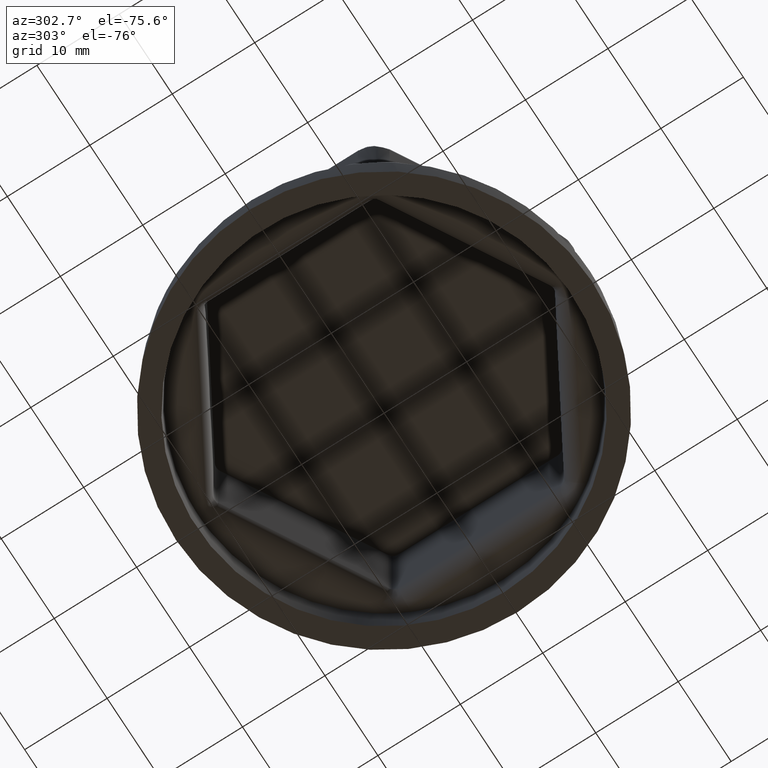
[diagram: clean part render]
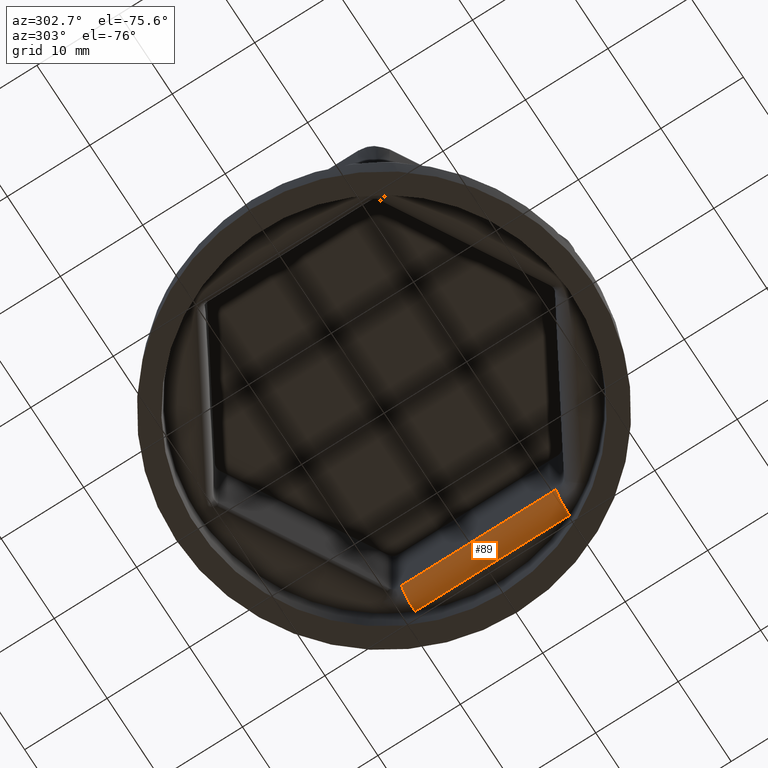
[diagram: same view with one face highlighted and labeled with its STEP entity id]
A machine part, auxiliary view. The second image highlights one B-rep face of the part: STEP entity #89.
In plain terms, the highlighted cylindrical surface (edge-blend (fillet) strip) has radius 2.5 mm, axis along (0, 1, -0).
Its self-contained STEP definition (entity closure, byte-faithful):
#89 = ADVANCED_FACE( '', ( #235 ), #236, .T. );
#235 = FACE_OUTER_BOUND( '', #855, .T. );
#236 = CYLINDRICAL_SURFACE( '', #856, 2.50000000000000 );
#855 = EDGE_LOOP( '', ( #5590, #5591, #5592, #5593 ) );
#856 = AXIS2_PLACEMENT_3D( '', #5594, #5595, #5596 );
#5590 = ORIENTED_EDGE( '', *, *, #6307, .F. );
#5591 = ORIENTED_EDGE( '', *, *, #6308, .T. );
#5592 = ORIENTED_EDGE( '', *, *, #6303, .T. );
#5593 = ORIENTED_EDGE( '', *, *, #6287, .T. );
#5594 = CARTESIAN_POINT( '', ( 20.4567431577892, 10.3923048454133, 6.90000000000000 ) );
#5595 = DIRECTION( '', ( 3.88578058618805E-016, 1.00000000000000, -6.84331992860752E-049 ) );
#5596 = DIRECTION( '', ( 1.00000000000000, -3.88578058618805E-016, 0.000000000000000 ) );
#6287 = EDGE_CURVE( '', #6627, #6625, #6628, .T. );
#6303 = EDGE_CURVE( '', #6651, #6627, #6652, .T. );
#6307 = EDGE_CURVE( '', #6657, #6625, #6658, .T. );
#6308 = EDGE_CURVE( '', #6657, #6651, #6659, .T. );
#6625 = VERTEX_POINT( '', #7270 );
#6627 = VERTEX_POINT( '', #7275 );
#6628 = LINE( '', #7276, #7277 );
#6651 = VERTEX_POINT( '', #7366 );
#6652 = CIRCLE( '', #7367, 2.50000000000000 );
#6657 = VERTEX_POINT( '', #7372 );
#6658 = CIRCLE( '', #7373, 2.50000000000000 );
#6659 = LINE( '', #7374, #7375 );
#7270 = CARTESIAN_POINT( '', ( 17.9571239198983, 9.36865301824353, 6.85636898390679 ) );
#7275 = CARTESIAN_POINT( '', ( 17.9571239198982, -9.36865301824355, 6.85636898390679 ) );
#7276 = CARTESIAN_POINT( '', ( 17.9571239198983, 10.3923048454133, 6.85636898390679 ) );
#7277 = VECTOR( '', #9437, 1000.00000000000 );
#7366 = CARTESIAN_POINT( '', ( 20.4567431577892, -9.36865301824355, 4.40000000000000 ) );
#7367 = AXIS2_PLACEMENT_3D( '', #9472, #9473, #9474 );
#7372 = CARTESIAN_POINT( '', ( 20.4567431577892, 9.36865301824353, 4.40000000000000 ) );
#7373 = AXIS2_PLACEMENT_3D( '', #9484, #9485, #9486 );
#7374 = CARTESIAN_POINT( '', ( 20.4567431577892, -7.94904154191726E-015, 4.40000000000000 ) );
#7375 = VECTOR( '', #9487, 1000.00000000000 );
#9437 = DIRECTION( '', ( 3.88578058618805E-016, 1.00000000000000, -8.60587402658623E-034 ) );
#9472 = CARTESIAN_POINT( '', ( 20.4567431577892, -9.36865301824355, 6.90000000000000 ) );
#9473 = DIRECTION( '', ( 6.93995089204255E-016, 1.00000000000000, 0.000000000000000 ) );
#9474 = DIRECTION( '', ( -1.00000000000000, 6.93995089204255E-016, 0.000000000000000 ) );
#9484 = CARTESIAN_POINT( '', ( 20.4567431577892, 9.36865301824353, 6.90000000000000 ) );
#9485 = DIRECTION( '', ( 4.37025596067891E-016, 1.00000000000000, -2.77555756156289E-015 ) );
#9486 = DIRECTION( '', ( 0.000000000000000, 2.77555756156289E-015, 1.00000000000000 ) );
#9487 = DIRECTION( '', ( -3.88578058618805E-016, -1.00000000000000, 0.000000000000000 ) );